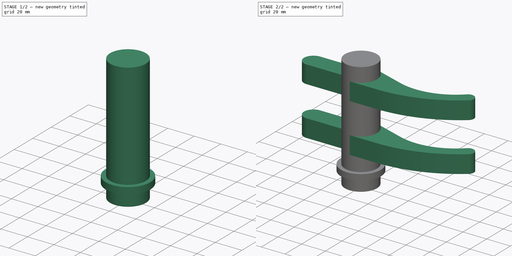
[diagram: build sequence overview — one tinted view per stage of 2, left to right]
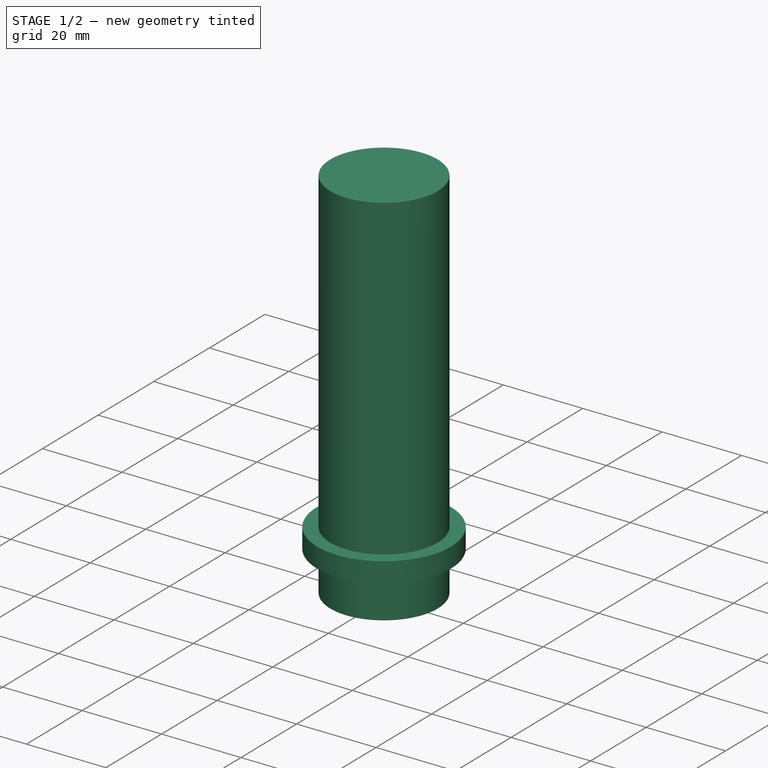
[diagram: stage 1 of 2 — iso view after this stage's code; geometry added in this stage tinted green]
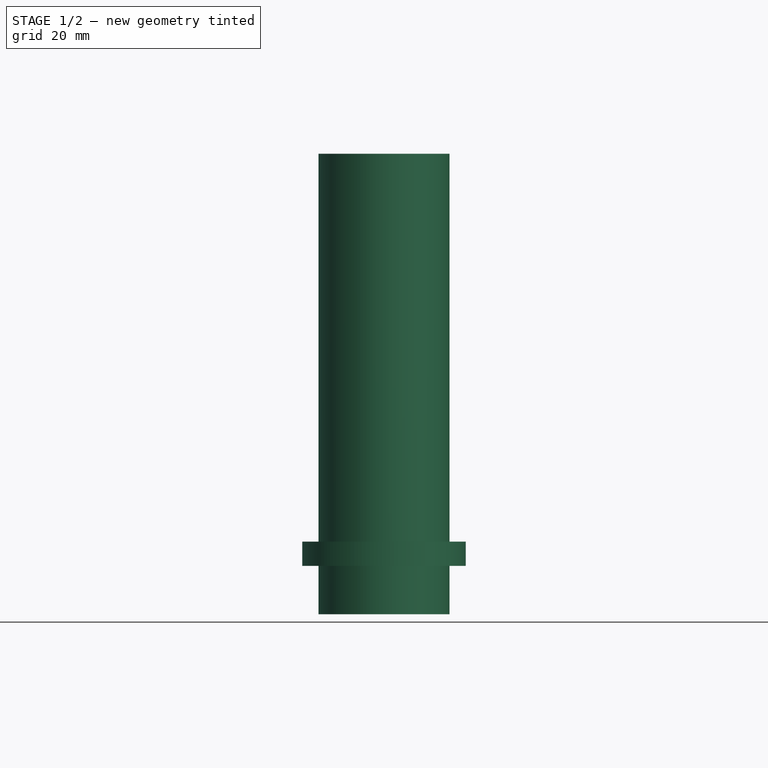
[diagram: stage 1 of 2 — front view after this stage's code; geometry added in this stage tinted green]
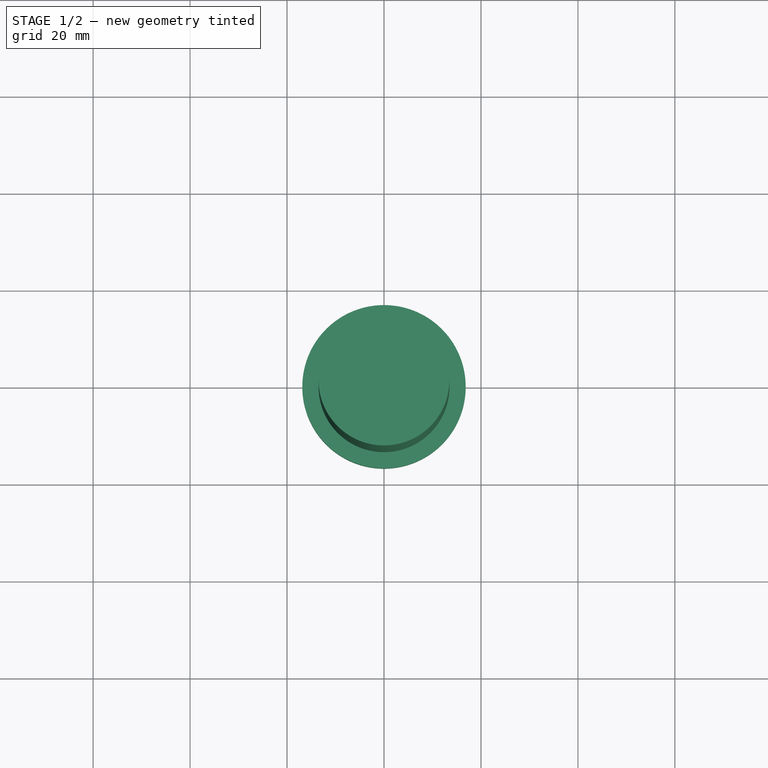
[diagram: stage 1 of 2 — top view after this stage's code; geometry added in this stage tinted green]
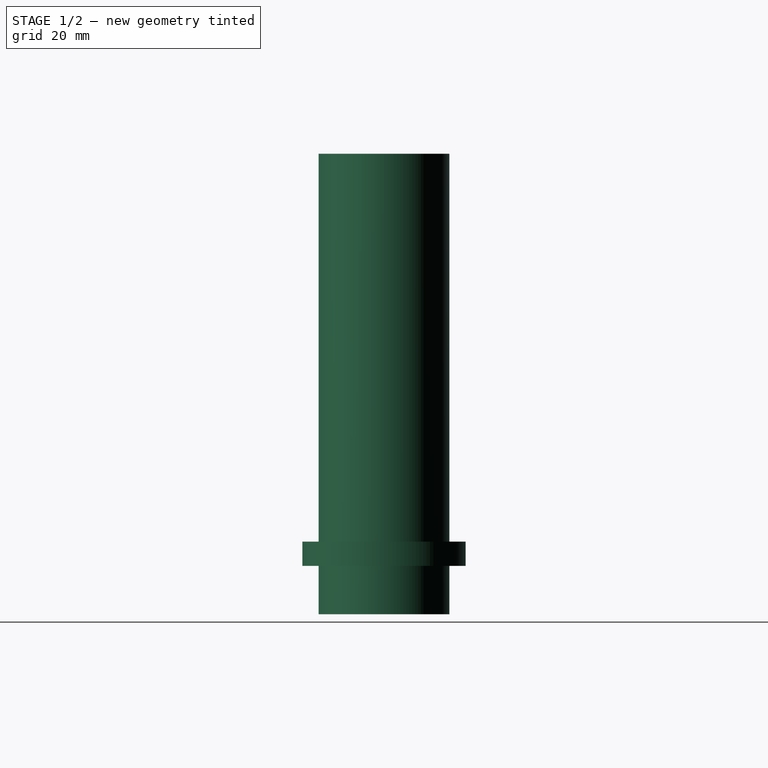
[diagram: stage 1 of 2 — right view after this stage's code; geometry added in this stage tinted green]
FCSTD DOCUMENT  (FreeCAD 0.18R4 (GitTag))
Label: door-cam
License: All rights reserved
LicenseURL: http://en.wikipedia.org/wiki/All_rights_reserved
objects: Sketcher::SketchObject×3, PartDesign::Pad×3, PartDesign::LinearPattern×1, PartDesign::Body×1
note: 11 computed .brp shape members not serialized (recipe doc carries the construction recipe); baked Part::Feature solids carry a one-line shape summary decoded from their .brp

FEATURE [Sketcher::SketchObject] Sketch
  MapMode = 5
  Support = -> [XY_Plane]
  sketch-geometry (1):
    g0: Circle CenterX=0 CenterY=0 CenterZ=0 NormalX=0 NormalY=0 NormalZ=1 AngleXU=0 Radius=13.5
  constraints (2):
    c: Coincident(g0,g-1)
    c: Diameter(g0) = 27
FEATURE [PartDesign::Pad] Pad
  Length = 95
  Length2 = 100
  Profile = -> Sketch
  Refine = true
  Type = 0
FEATURE [Sketcher::SketchObject] Sketch001
  AttachmentOffset = pos=(0,0,10) rot=(0,0,1;0rad)
  MapMode = 5
  Placement = pos=(0,0,10) rot=(0,0,1;0rad)
  Support = -> [XY_Plane]
  sketch-geometry (1):
    g0: Circle CenterX=0 CenterY=0 CenterZ=0 NormalX=0 NormalY=0 NormalZ=1 AngleXU=0 Radius=16.85
  constraints (3):
    c: PointOnObject(g0,g-1)
    c: Diameter(g0) = 33.7
    c: PointOnObject(g0,g-2)
FEATURE [PartDesign::Pad] Pad001
  BaseFeature = -> Pad
  Length = 5
  Length2 = 100
  Profile = -> Sketch001
  Refine = true
  Type = 0
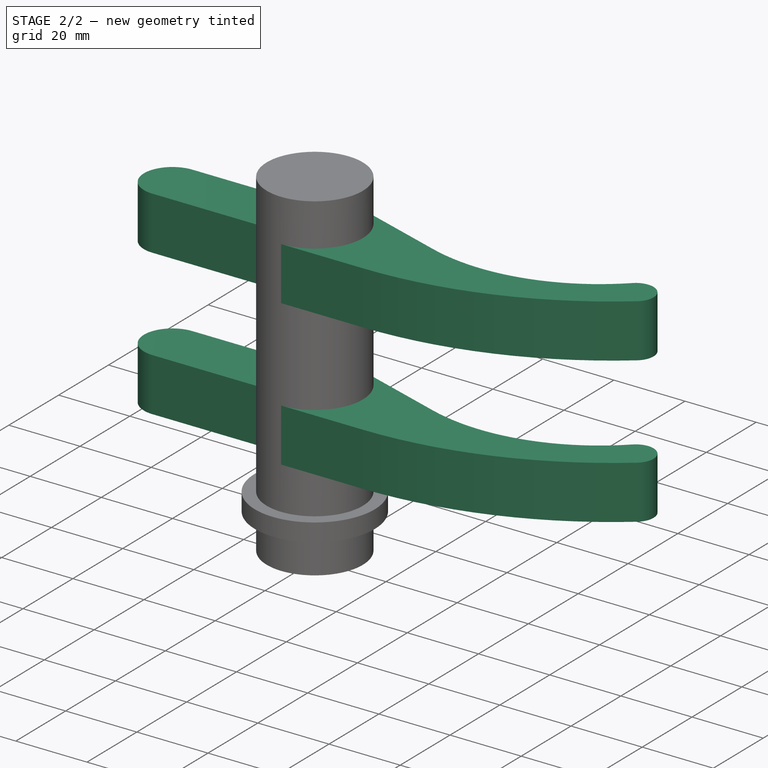
[diagram: stage 2 of 2 — iso view after this stage's code; geometry added in this stage tinted green]
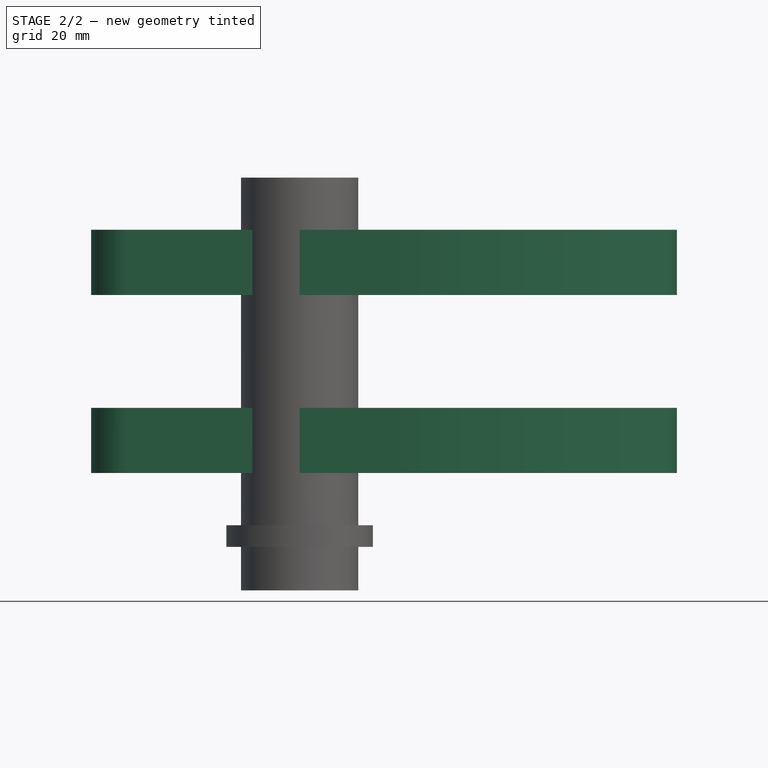
[diagram: stage 2 of 2 — front view after this stage's code; geometry added in this stage tinted green]
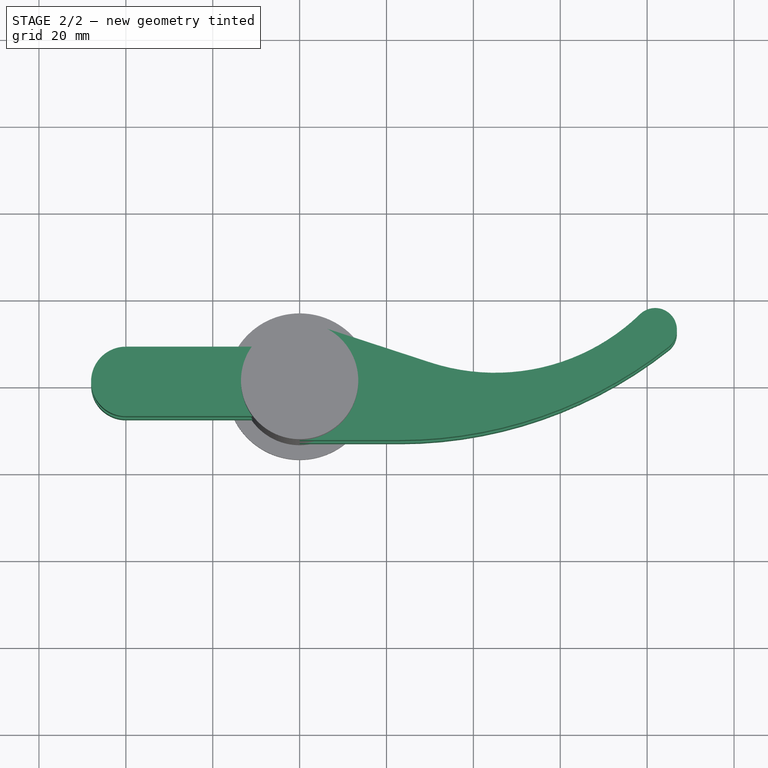
[diagram: stage 2 of 2 — top view after this stage's code; geometry added in this stage tinted green]
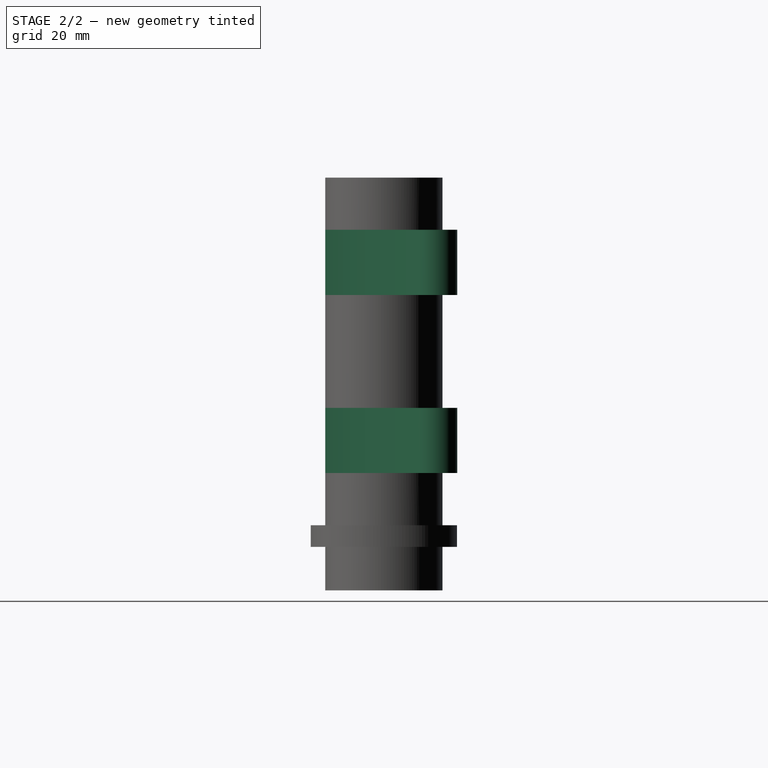
[diagram: stage 2 of 2 — right view after this stage's code; geometry added in this stage tinted green]
FEATURE [Sketcher::SketchObject] Sketch002
  AttachmentOffset = pos=(0,0,27) rot=(0,0,1;0rad)
  ExternalGeometry = -> [Pad001]
  MapMode = 5
  Placement = pos=(0,0,27) rot=(0,0,1;0rad)
  Support = -> [XY_Plane]
  sketch-geometry (10):
    g0: LineSegment StartX=4.19189 StartY=12.8327 StartZ=0 EndX=30.0978 EndY=4.37035 EndZ=0
    g1: LineSegment StartX=0 StartY=-13.5 StartZ=0 EndX=23.027 EndY=-13.5 EndZ=0
    g2: ArcOfCircle CenterX=23.027 CenterY=86.5 CenterZ=0 NormalX=0 NormalY=0 NormalZ=1 AngleXU=0 Radius=100 StartAngle=4.71239 EndAngle=5.38007
    g3: ArcOfCircle CenterX=81.8475 CenterY=11.9001 CenterZ=0 NormalX=0 NormalY=0 NormalZ=1 AngleXU=0 Radius=5 StartAngle=5.38006 EndAngle=8.62267
    g4: ArcOfCircle CenterX=45.0023 CenterY=49.9977 CenterZ=0 NormalX=0 NormalY=0 NormalZ=1 AngleXU=0 Radius=48 StartAngle=4.39666 EndAngle=5.48108
    g5: LineSegment StartX=4.19189 StartY=12.8327 StartZ=0 EndX=0 EndY=8 EndZ=0
    g6: LineSegment StartX=0 StartY=8 StartZ=0 EndX=-40 EndY=8 EndZ=0
    g7: LineSegment StartX=-40 StartY=-8 StartZ=0 EndX=0 EndY=-8 EndZ=0
    g8: ArcOfCircle CenterX=-40 CenterY=5e-16 CenterZ=0 NormalX=0 NormalY=0 NormalZ=1 AngleXU=0 Radius=8 StartAngle=1.5708 EndAngle=4.71239
    g9: LineSegment StartX=0 StartY=-8 StartZ=0 EndX=0 EndY=-13.5 EndZ=0
  constraints (34):
    c: Horizontal(g1)
    c: Coincident(g2,g1)
    c: Coincident(g3,g2)
    c: Coincident(g4,g0)
    c: Coincident(g4,g3)
    c: Radius(g4) = 48
    c: Radius(g2) = 100
    c: Radius(g3) = 5
    c: Tangent(g2,g3)
    c: Tangent(g4,g3)
    c: Angle(g0,g1) = 0.31573
    c: Tangent(g4,g0)
    c: Tangent(g2,g1)
    c: Distance(g0) = 27.253
    c: Distance(g1) = 23.027
    c: PointOnObject(g0,g-3)
    c: Tangent(g0,g-3)
    c: Coincident(g5,g0)
    c: PointOnObject(g1,g-3)
    c: Horizontal(g6)
    c: Horizontal(g7)
    c: PointOnObject(g6,g-2)
    c: Coincident(g8,g6)
    c: Coincident(g8,g7)
    c: Radius(g8) = 8
    c: Tangent(g6,g8)
    c: Tangent(g8,g7)
    c: Coincident(g9,g7)
    c: Coincident(g9,g1)
    c: PointOnObject(g1,g-2)
    c: PointOnObject(g7,g-2)
    c: Coincident(g5,g6)
    c: DistanceY(g-1,g6) = 8
    c: DistanceX(g8,g-1) = 40
FEATURE [PartDesign::Pad] Pad002
  BaseFeature = -> Pad001
  Length = 15
  Length2 = 100
  Profile = -> Sketch002
  Refine = true
  Type = 0
FEATURE [PartDesign::LinearPattern] LinearPattern
  BaseFeature = -> Pad002
  Direction = -> Z_Axis
  Length = 41
  Occurrences = 2
  Originals = -> [Pad002]
  Refine = true
FEATURE [PartDesign::Body] Body
  Group = -> [Sketch,Pad,Sketch001,Pad001,Sketch002,Pad002,LinearPattern]
  Origin = -> Origin
  Tip = -> LinearPattern
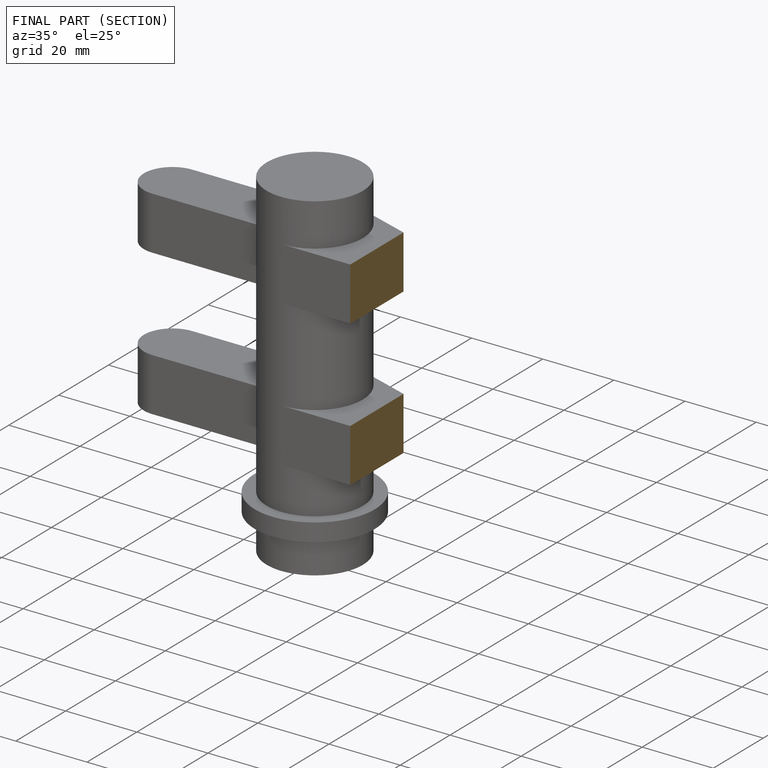
[diagram: finished part — half-section view (interior)]
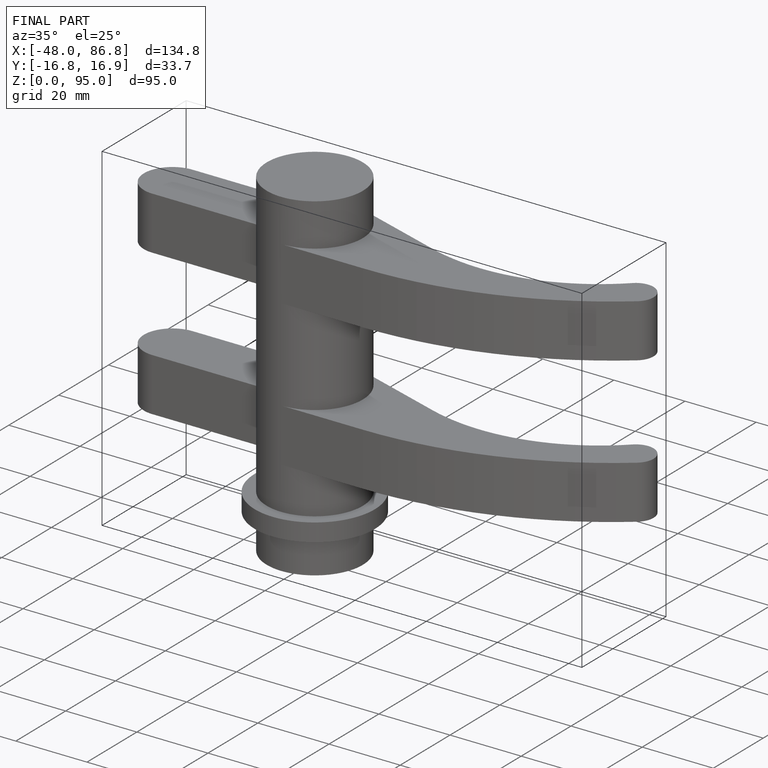
[diagram: finished part — iso view with bounding-box wireframe]
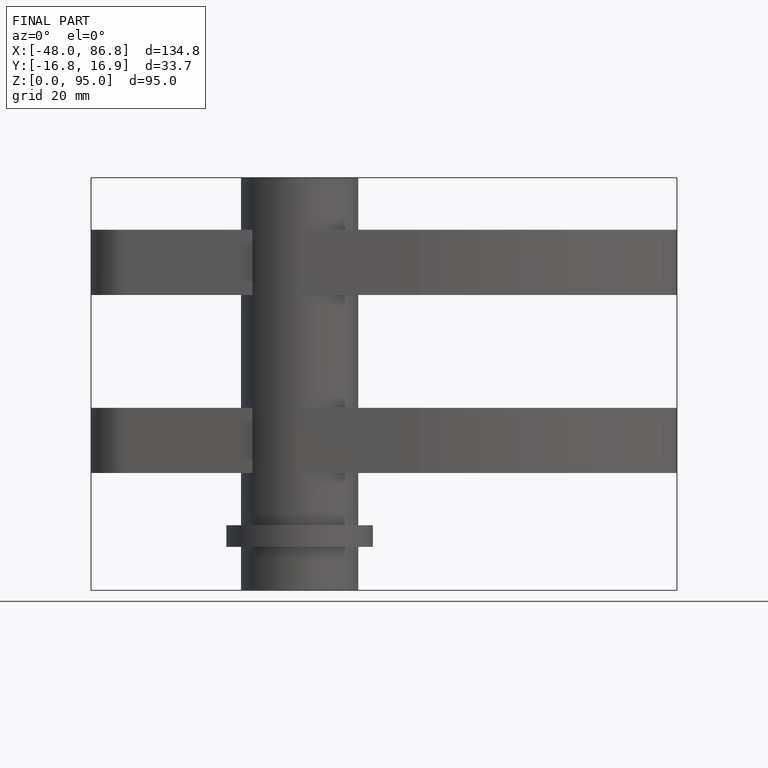
[diagram: finished part — front view with bounding-box wireframe]
